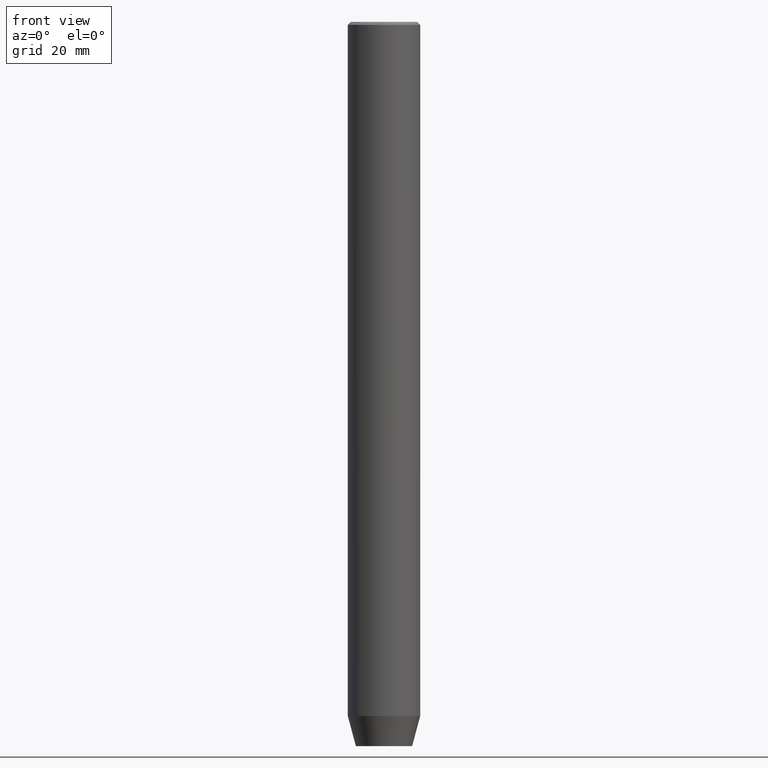
[diagram: clean part render]
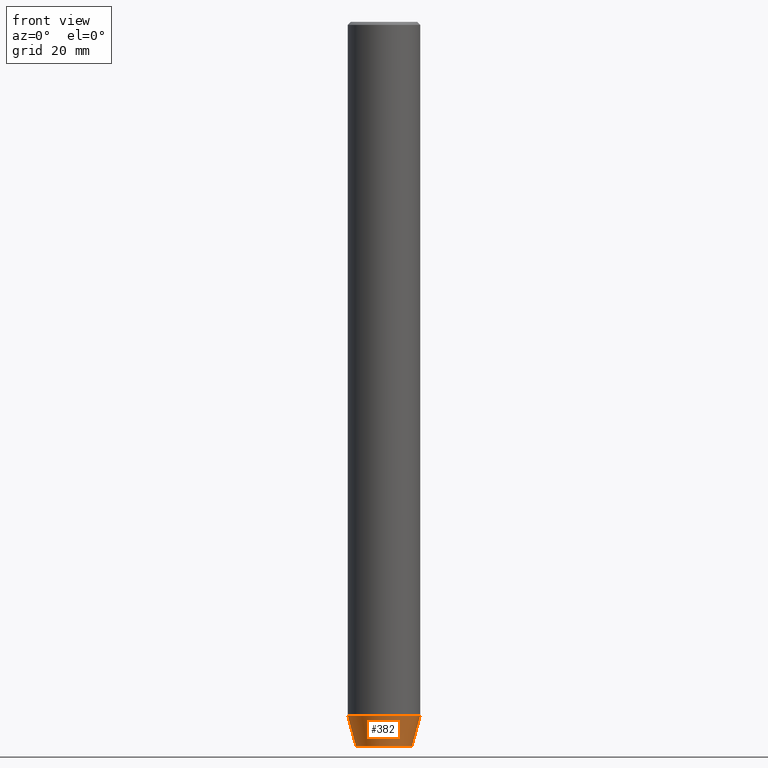
[diagram: same view with one face highlighted and labeled with its STEP entity id]
A machine part, front view. The second image highlights one B-rep face of the part: STEP entity #382.
In plain terms, the highlighted conical surface has half-angle 15 deg.
Its self-contained STEP definition (entity closure, byte-faithful):
#29 = FACE_OUTER_BOUND ( 'NONE', #386, .T. ) ;
#40 = DIRECTION ( 'NONE',  ( -0.000000000000000000, -0.000000000000000000, 1.000000000000000000 ) ) ;
#71 = CARTESIAN_POINT ( 'NONE',  ( -6.000000000000000000, 7.347880794884119736E-16, -114.9999999999999858 ) ) ;
#72 = DIRECTION ( 'NONE',  ( 1.000000000000000000, 0.000000000000000000, 0.000000000000000000 ) ) ;
#76 = ORIENTED_EDGE ( 'NONE', *, *, #551, .F. ) ;
#78 = EDGE_CURVE ( 'NONE', #553, #562, #556, .T. ) ;
#137 = CARTESIAN_POINT ( 'NONE',  ( -6.000000000000000000, 7.347880794884119736E-16, -114.9999999999999858 ) ) ;
#172 = CIRCLE ( 'NONE', #202, 6.000000000000000000 ) ;
#202 = AXIS2_PLACEMENT_3D ( 'NONE', #476, #571, #72 ) ;
#211 = EDGE_CURVE ( 'NONE', #474, #491, #172, .T. ) ;
#228 = CONICAL_SURFACE ( 'NONE', #377, 6.000000000000000000, 0.2617993877991502405 ) ;
#250 = CARTESIAN_POINT ( 'NONE',  ( -4.660254037844381081, 6.527522992771884330E-16, -120.0000000000000000 ) ) ;
#261 = CARTESIAN_POINT ( 'NONE',  ( 0.000000000000000000, 0.000000000000000000, -114.9999999999999858 ) ) ;
#292 = ORIENTED_EDGE ( 'NONE', *, *, #78, .T. ) ;
#325 = DIRECTION ( 'NONE',  ( 1.000000000000000000, 0.000000000000000000, 0.000000000000000000 ) ) ;
#355 = DIRECTION ( 'NONE',  ( -0.2588190451025214611, 3.169619151431774186E-17, 0.9659258262890679791 ) ) ;
#377 = AXIS2_PLACEMENT_3D ( 'NONE', #261, #40, #482 ) ;
#382 = ADVANCED_FACE ( 'NONE', ( #29 ), #228, .T. ) ;
#386 = EDGE_LOOP ( 'NONE', ( #76, #292, #401, #397 ) ) ;
#397 = ORIENTED_EDGE ( 'NONE', *, *, #211, .F. ) ;
#399 = CARTESIAN_POINT ( 'NONE',  ( 4.660254037844381081, 0.000000000000000000, -120.0000000000000000 ) ) ;
#401 = ORIENTED_EDGE ( 'NONE', *, *, #450, .T. ) ;
#408 = CARTESIAN_POINT ( 'NONE',  ( 0.000000000000000000, 0.000000000000000000, -120.0000000000000000 ) ) ;
#410 = CARTESIAN_POINT ( 'NONE',  ( 6.000000000000000000, 0.000000000000000000, -114.9999999999999858 ) ) ;
#449 = CARTESIAN_POINT ( 'NONE',  ( 6.000000000000000000, 0.000000000000000000, -114.9999999999999858 ) ) ;
#450 = EDGE_CURVE ( 'NONE', #562, #491, #455, .T. ) ;
#455 = LINE ( 'NONE', #410, #566 ) ;
#474 = VERTEX_POINT ( 'NONE', #137 ) ;
#476 = CARTESIAN_POINT ( 'NONE',  ( 0.000000000000000000, 0.000000000000000000, -114.9999999999999858 ) ) ;
#482 = DIRECTION ( 'NONE',  ( 1.000000000000000000, 0.000000000000000000, 0.000000000000000000 ) ) ;
#484 = LINE ( 'NONE', #71, #497 ) ;
#491 = VERTEX_POINT ( 'NONE', #449 ) ;
#497 = VECTOR ( 'NONE', #355, 1000.000000000000114 ) ;
#529 = AXIS2_PLACEMENT_3D ( 'NONE', #408, #538, #325 ) ;
#538 = DIRECTION ( 'NONE',  ( -0.000000000000000000, -0.000000000000000000, 1.000000000000000000 ) ) ;
#551 = EDGE_CURVE ( 'NONE', #553, #474, #484, .T. ) ;
#553 = VERTEX_POINT ( 'NONE', #250 ) ;
#556 = CIRCLE ( 'NONE', #529, 4.660254037844381081 ) ;
#562 = VERTEX_POINT ( 'NONE', #399 ) ;
#566 = VECTOR ( 'NONE', #582, 1000.000000000000114 ) ;
#571 = DIRECTION ( 'NONE',  ( -0.000000000000000000, -0.000000000000000000, 1.000000000000000000 ) ) ;
#582 = DIRECTION ( 'NONE',  ( 0.2588190451025214611, 0.000000000000000000, 0.9659258262890679791 ) ) ;